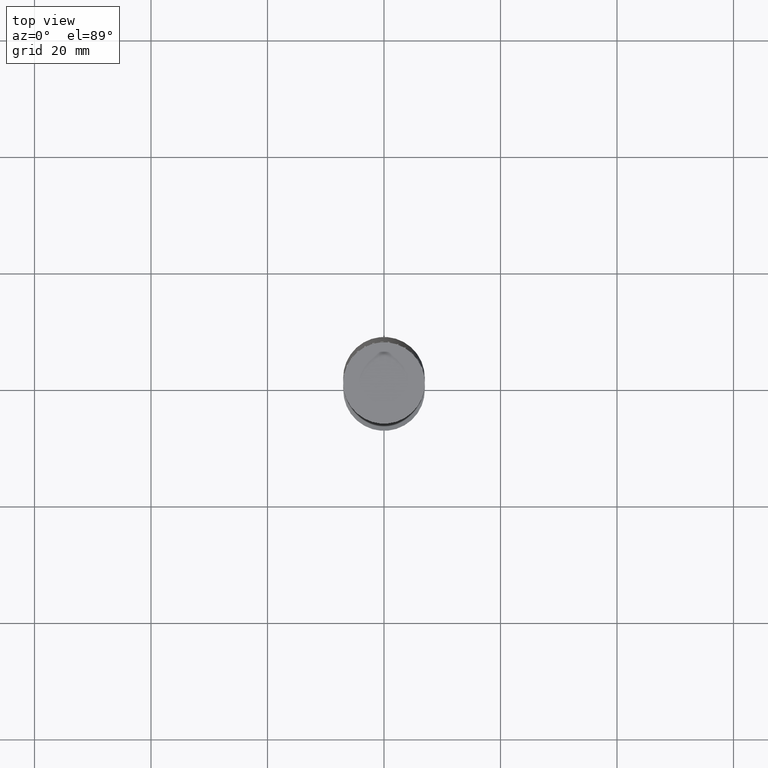
[diagram: clean part render]
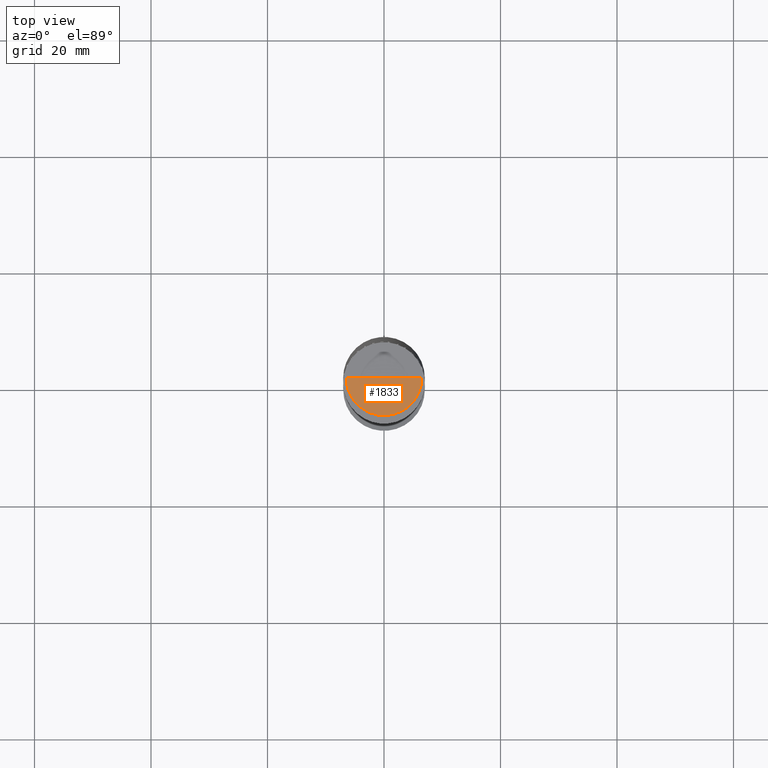
[diagram: same view with one face highlighted and labeled with its STEP entity id]
A machine part, top view. The second image highlights one B-rep face of the part: STEP entity #1833.
In plain terms, the highlighted face is a freeform B-spline surface patch.
Its self-contained STEP definition (entity closure, byte-faithful):
#1479=CARTESIAN_POINT('',(6.5,0.0,45.0));
#1483=CARTESIAN_POINT('',(-6.5,0.0,45.0));
#1484=CARTESIAN_POINT('',(0.0,0.0,45.0));
#1494=CARTESIAN_POINT('',(-6.5,-6.5,45.0));
#1495=CARTESIAN_POINT('',(0.0,-6.5,45.0));
#1496=CARTESIAN_POINT('',(6.5,-6.5,45.0));
#1818=(
BOUNDED_SURFACE()
B_SPLINE_SURFACE(1,2,(
(#1483,#1494,#1495,#1496,#1479),
(#1484,#1484,#1484,#1484,#1484)
), .UNSPECIFIED.,.F.,.F.,.F.)
B_SPLINE_SURFACE_WITH_KNOTS((2,2),(3,2,3),(
0.0,1.0),(
0.0,0.5,1.0), .UNSPECIFIED.)
GEOMETRIC_REPRESENTATION_ITEM()
RATIONAL_B_SPLINE_SURFACE(((1.0,0.707106781187,1.0,0.707106781187,1.0),
(1.0,0.707106781187,1.0,0.707106781187,1.0)
))
REPRESENTATION_ITEM('')
SURFACE()
);
#1819=(
BOUNDED_CURVE()
B_SPLINE_CURVE(2,(#1479,#1496,#1495,#1494,#1483),.UNSPECIFIED.,.F.,.F.)
B_SPLINE_CURVE_WITH_KNOTS((3,2,3),
(0.0,0.5,1.0),.UNSPECIFIED.)
CURVE()
GEOMETRIC_REPRESENTATION_ITEM()
RATIONAL_B_SPLINE_CURVE((1.0,0.707106781187,1.0,0.707106781187,1.0))
REPRESENTATION_ITEM('')
);
#1820=(
BOUNDED_CURVE()
B_SPLINE_CURVE(1,(#1483,#1484),.UNSPECIFIED.,.F.,.F.)
B_SPLINE_CURVE_WITH_KNOTS((2,2),
(0.0,1.0),.UNSPECIFIED.)
CURVE()
GEOMETRIC_REPRESENTATION_ITEM()
RATIONAL_B_SPLINE_CURVE((1.0,1.0))
REPRESENTATION_ITEM('')
);
#1821=(
BOUNDED_CURVE()
B_SPLINE_CURVE(1,(#1484,#1479),.UNSPECIFIED.,.F.,.F.)
B_SPLINE_CURVE_WITH_KNOTS((2,2),
(0.0,1.0),.UNSPECIFIED.)
CURVE()
GEOMETRIC_REPRESENTATION_ITEM()
RATIONAL_B_SPLINE_CURVE((1.0,1.0))
REPRESENTATION_ITEM('')
);
#1822=VERTEX_POINT('',#1479);
#1823=VERTEX_POINT('',#1483);
#1824=VERTEX_POINT('',#1484);
#1825=EDGE_CURVE('',#1822,#1823,#1819,.T.);
#1826=EDGE_CURVE('',#1823,#1824,#1820,.T.);
#1827=EDGE_CURVE('',#1824,#1822,#1821,.T.);
#1828=ORIENTED_EDGE('',*,*,#1825,.T.);
#1829=ORIENTED_EDGE('',*,*,#1826,.T.);
#1830=ORIENTED_EDGE('',*,*,#1827,.T.);
#1831=EDGE_LOOP('',(#1828,#1829,#1830));
#1832=FACE_OUTER_BOUND('',#1831,.T.);
#1833=ADVANCED_FACE('',(#1832),#1818,.T.);